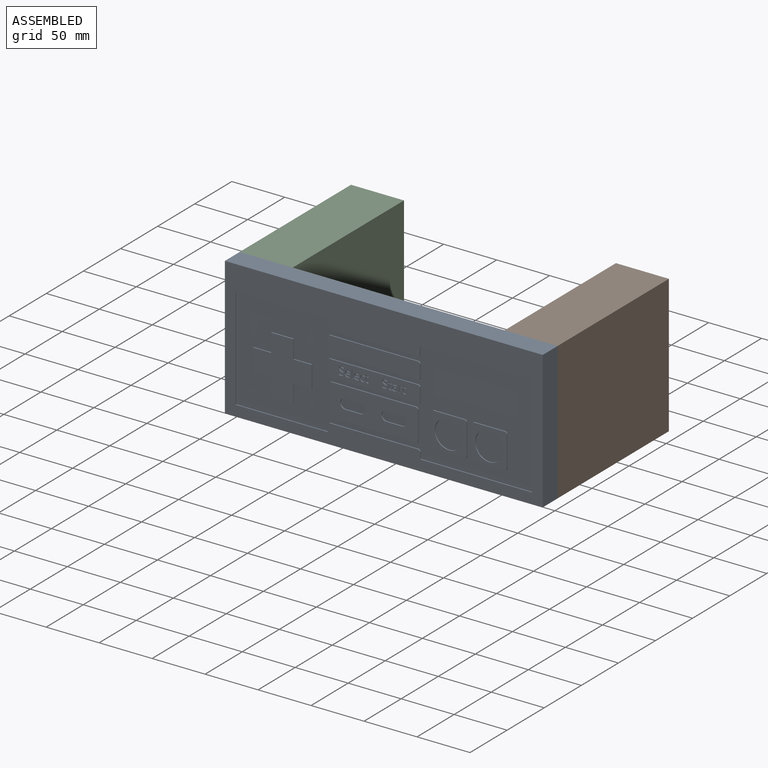
[diagram: assembled view]
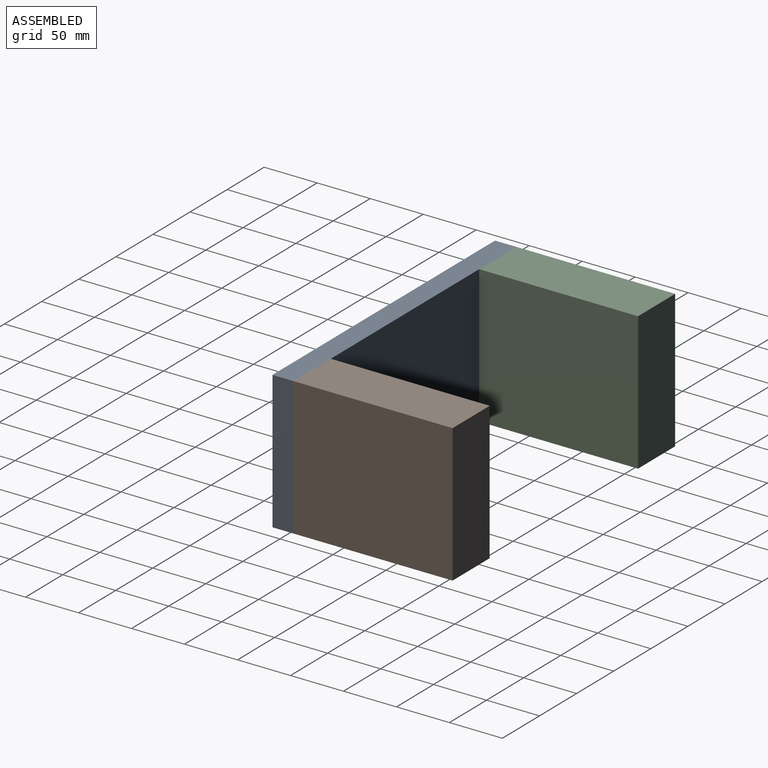
[diagram: assembled view, second angle]
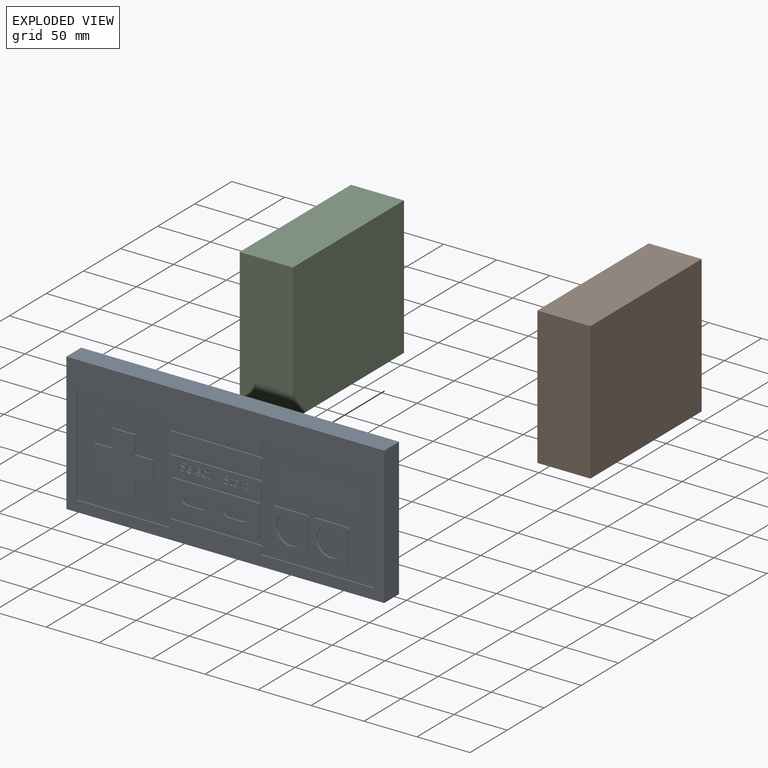
[diagram: exploded view]
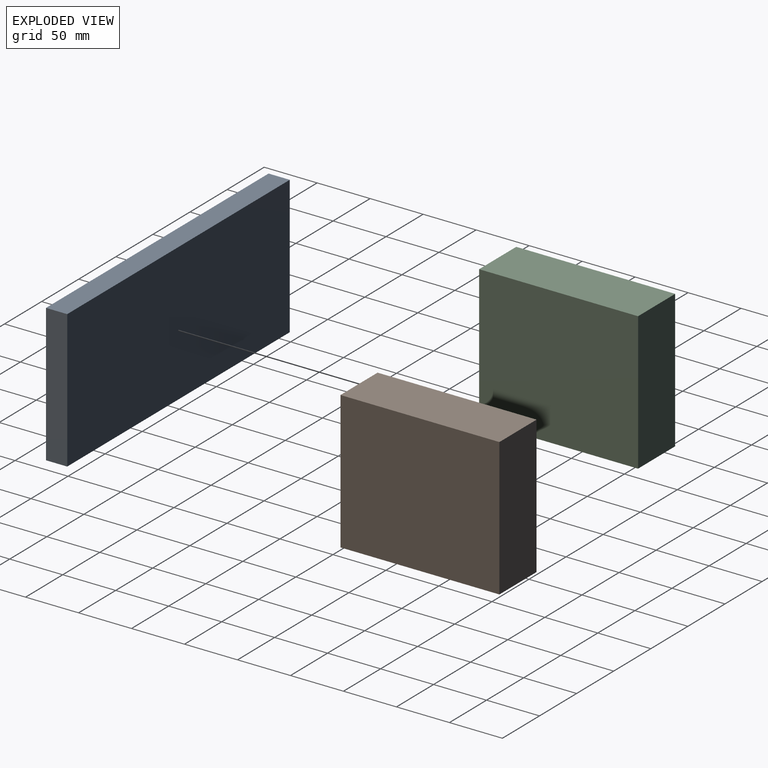
[diagram: exploded view, second angle]
ASSEMBLY  parts=3 mates=2
PART A: 315 faces, bbox 300x20x130 mm
  f0: plane 87x16mm, normal (0,-1,0), area 1268mm2, adj f21,f22,f23,f24,f25,f26,f27,f69
  f1: plane 300x130mm, normal (0,-1,0), area 13595.6mm2, adj f2,f3,f4,f5,f42,f43,f44,f45
  f2: plane 300x20mm, normal (0,0,1), area 6000mm2, adj f1,f3,f5,f6
  f3: plane 130x20mm, normal (-1,0,0), area 2600mm2, adj f1,f2,f4,f6
  f4: plane 300x20mm, normal (0,0,-1), area 6000mm2, adj f1,f3,f5,f6
  f5: plane 130x20mm, normal (1,0,0), area 2600mm2, adj f1,f2,f4,f6
  f6: plane 300x130mm, normal (0,1,0), area 39000mm2, adj f2,f3,f4,f5
  f7: plane 79.5x1mm, normal (0,0,1), area 79.5mm2, adj f8,f74,f75,f84
  f8: cylinder r=2mm len=2mm, axis (0,-1,0), area 3.1mm2, adj f7,f9,f75,f84
  f9: plane 26.5x1mm, normal (1,0,0), area 26.5mm2, adj f8,f10,f75,f84
  f10: cylinder r=2mm len=2mm, axis (0,-1,0), area 3.1mm2, adj f9,f11,f75,f84
  f11: plane 79.5x1mm, normal (0,0,-1), area 79.5mm2, adj f10,f12,f75,f84
  f12: cylinder r=2mm len=2mm, axis (0,-1,0), area 3.1mm2, adj f11,f13,f75,f84
  f13: plane 26.5x1mm, normal (-1,0,0), area 26.5mm2, adj f12,f74,f75,f84
  f14: cylinder r=2mm len=2mm, axis (0,-1,0), area 3.1mm2, adj f15,f68,f75,f79
  f15: plane 83x1mm, normal (0,0,1), area 83mm2, adj f14,f16,f75,f79
  f16: cylinder r=2mm len=2mm, axis (0,-1,0), area 3.1mm2, adj f15,f17,f75,f79
  f17: plane 12x1mm, normal (1,0,0), area 12mm2, adj f16,f18,f75,f79
  f18: cylinder r=2mm len=2mm, axis (0,-1,0), area 3.1mm2, adj f17,f19,f75,f79
  f19: plane 83x1mm, normal (0,0,-1), area 83mm2, adj f18,f20,f75,f79
  f20: cylinder r=2mm len=2mm, axis (0,-1,0), area 3.1mm2, adj f19,f68,f75,f79
  f21: cylinder r=2mm len=2mm, axis (0,-1,0), area 3.1mm2, adj f0,f22,f69,f75
  f22: plane 12x1mm, normal (-1,0,0), area 12mm2, adj f0,f21,f23,f75
  f23: cylinder r=2mm len=2mm, axis (0,-1,0), area 3.1mm2, adj f0,f22,f24,f75
  f24: plane 83x1mm, normal (0,0,1), area 83mm2, adj f0,f23,f25,f75
  f25: cylinder r=2mm len=2mm, axis (0,-1,0), area 3.1mm2, adj f0,f24,f26,f75
  f26: plane 12x1mm, normal (1,0,0), area 12mm2, adj f0,f25,f27,f75
  f27: cylinder r=2mm len=2mm, axis (0,-1,0), area 3.1mm2, adj f0,f26,f69,f75
  f28: plane 29x1mm, normal (0,0,-1), area 29mm2, adj f29,f70,f75,f78
  f29: cylinder r=2mm len=2mm, axis (0,-1,0), area 3.1mm2, adj f28,f30,f75,f78
  f30: plane 29x1mm, normal (-1,0,0), area 29mm2, adj f29,f31,f75,f78
  f31: cylinder r=2mm len=2mm, axis (0,-1,0), area 3.1mm2, adj f30,f32,f75,f78
  f32: plane 29x1mm, normal (0,0,1), area 29mm2, adj f31,f33,f75,f78
  f33: cylinder r=2mm len=2mm, axis (0,-1,0), area 3.1mm2, adj f32,f34,f75,f78
  f34: plane 29x1mm, normal (1,0,0), area 29mm2, adj f33,f70,f75,f78
  f35: plane 29x1mm, normal (0,0,-1), area 29mm2, adj f36,f71,f75,f77
  f36: cylinder r=2mm len=2mm, axis (0,-1,0), area 3.1mm2, adj f35,f37,f75,f77
  f37: plane 29x1mm, normal (-1,0,0), area 29mm2, adj f36,f38,f75,f77
  f38: cylinder r=2mm len=2mm, axis (0,-1,0), area 3.1mm2, adj f37,f39,f75,f77
  f39: plane 29x1mm, normal (0,0,1), area 29mm2, adj f38,f40,f75,f77
  f40: cylinder r=2mm len=2mm, axis (0,-1,0), area 3.1mm2, adj f39,f41,f75,f77
  f41: plane 29x1mm, normal (1,0,0), area 29mm2, adj f40,f71,f75,f77
  f42: plane 105.9x1mm, normal (0,0,1), area 105.9mm2, adj f1,f43,f72,f75
  f43: plane 96x1mm, normal (-1,0,0), area 96mm2, adj f1,f42,f44,f75
  f44: plane 106x1mm, normal (0,0,-1), area 106mm2, adj f1,f43,f45,f75
  f45: plane 7x1mm, normal (1,0,0), area 7mm2, adj f1,f44,f46,f75
  f46: cylinder r=2mm len=2mm, axis (0,-1,0), area 3.1mm2, adj f1,f45,f47,f75
  f47: plane 83x1mm, normal (0,0,-1), area 83mm2, adj f1,f46,f48,f75
  f48: cylinder r=2mm len=2mm, axis (0,-1,0), area 3.1mm2, adj f1,f47,f49,f75
  f49: plane 7x1mm, normal (-1,0,0), area 7mm2, adj f1,f48,f50,f75
  f50: plane 87x1mm, normal (0,0,-1), area 87mm2, adj f1,f49,f51,f75
  f51: plane 96x1mm, normal (1,0,0), area 96mm2, adj f1,f50,f52,f75
  f52: plane 87.1x1mm, normal (0,0,1), area 87.1mm2, adj f1,f51,f53,f75
  f53: plane 6x1mm, normal (-1,0,0), area 6mm2, adj f1,f52,f54,f75
  f54: cylinder r=2mm len=2mm, axis (0,-1,0), area 3.1mm2, adj f1,f53,f55,f75
  f55: plane 83x1mm, normal (0,0,1), area 83mm2, adj f1,f54,f56,f75
  f56: cylinder r=2mm len=2mm, axis (0,-1,0), area 3.1mm2, adj f1,f55,f72,f75
  f57: plane 17.25x1mm, normal (1,0,0), area 17.3mm2, adj f58,f73,f75,f76
  f58: plane 21x1mm, normal (0,0,-1), area 21mm2, adj f57,f59,f75,f76
  f59: plane 17.25x1mm, normal (-1,0,0), area 17.3mm2, adj f58,f60,f75,f76
  f60: plane 17.25x1mm, normal (0,0,-1), area 17.3mm2, adj f59,f61,f75,f76
  f61: plane 21x1mm, normal (-1,0,0), area 21mm2, adj f60,f62,f75,f76
  f62: plane 17.25x1mm, normal (0,0,1), area 17.3mm2, adj f61,f63,f75,f76
  f63: plane 17.25x1mm, normal (-1,0,0), area 17.3mm2, adj f62,f64,f75,f76
  f64: plane 21x1mm, normal (0,0,1), area 21mm2, adj f63,f65,f75,f76
  f65: plane 17.25x1mm, normal (1,0,0), area 17.3mm2, adj f64,f66,f75,f76
  f66: plane 17.25x1mm, normal (0,0,1), area 17.2mm2, adj f65,f67,f75,f76
  f67: plane 21x1mm, normal (1,0,0), area 21mm2, adj f66,f73,f75,f76
  f68: plane 12x1mm, normal (-1,0,0), area 12mm2, adj f14,f20,f75,f79
  f69: plane 83x1mm, normal (0,0,-1), area 83mm2, adj f0,f21,f27,f75
  f70: cylinder r=2mm len=2mm, axis (0,-1,0), area 3.1mm2, adj f28,f34,f75,f78
  f71: cylinder r=2mm len=2mm, axis (0,-1,0), area 3.1mm2, adj f35,f41,f75,f77
  f72: plane 6x1mm, normal (1,0,0), area 6mm2, adj f1,f42,f56,f75
  f73: plane 17.25x1mm, normal (0,0,-1), area 17.2mm2, adj f57,f67,f75,f76
  f74: cylinder r=2mm len=2mm, axis (0,-1,0), area 3.1mm2, adj f7,f13,f75,f84
  f75: plane 280x96mm, normal (0,-1,0), area 16022.9mm2, adj f7,f8,f9,f10,f11,f12,f13,f14
  f76: plane 55.5x55.5mm, normal (0,-1,0), area 1890mm2, adj f57,f58,f59,f60,f61,f62,f63,f64
  f77: plane 33x33mm, normal (0,-1,0), area 513mm2, adj f35,f36,f37,f38,f39,f40,f41,f71
  f78: plane 33x33mm, normal (0,-1,0), area 513mm2, adj f28,f29,f30,f31,f32,f33,f34,f70
  f79: plane 87x16mm, normal (0,-1,0), area 1388.6mm2, adj f14,f15,f16,f17,f18,f19,f20,f68
  f80: cylinder r=13.5mm len=27mm, axis (0,-1,0), area 84.8mm2, adj f77,f81
  f81: plane 27x27mm, normal (0,-1,0), area 572.6mm2, adj f80
  f82: cylinder r=13.5mm len=27mm, axis (0,-1,0), area 84.8mm2, adj f78,f83
  f83: plane 27x27mm, normal (0,-1,0), area 572.6mm2, adj f82
  f84: plane 83.5x30.5mm, normal (0,-1,0), area 2127.2mm2, adj f7,f8,f9,f10,f11,f12,f13,f74
  f85: plane 14.57x1mm, normal (0,0,-1), area 14.6mm2, adj f84,f86,f88,f89
  f86: cylinder r=4.73mm len=9.46mm, axis (0,-1,0), area 14.9mm2, adj f84,f85,f87,f89
  f87: plane 14.57x1mm, normal (0,0,1), area 14.6mm2, adj f84,f86,f88,f89
  f88: cylinder r=4.73mm len=9.46mm, axis (0,-1,0), area 14.9mm2, adj f84,f85,f87,f89
  f89: plane 24.03x9.46mm, normal (0,-1,0), area 208.1mm2, adj f85,f86,f87,f88
  f90: cylinder r=4.73mm len=9.46mm, axis (0,-1,0), area 14.9mm2, adj f84,f91,f93,f94
  f91: plane 14.57x1mm, normal (0,0,-1), area 14.6mm2, adj f84,f90,f92,f94
  f92: cylinder r=4.73mm len=9.46mm, axis (0,-1,0), area 14.9mm2, adj f84,f91,f93,f94
  f93: plane 14.57x1mm, normal (0,0,1), area 14.6mm2, adj f84,f90,f92,f94
  f94: plane 24.03x9.46mm, normal (0,-1,0), area 208.1mm2, adj f90,f91,f92,f93
  f95: extruded ~1.07x1mm, area 1.2mm2, adj f96,f113,f114,f312
  f96: extruded ~1.02x1mm, area 1.1mm2, adj f95,f97,f114,f312
  f97: extruded ~1.22x1mm, area 1.3mm2, adj f96,f98,f114,f312
  f98: plane 2.92x1mm, normal (0,0,-1), area 2.9mm2, adj f97,f113,f114,f312
  f99: extruded ~1.95x1mm, area 2.2mm2, adj f0,f100,f112,f114
  f100: extruded ~1x0.96mm, area 1mm2, adj f0,f99,f101,f114
  f101: extruded ~1x0.85mm, area 0.9mm2, adj f0,f100,f102,f114
  f102: plane 1x0.75mm, normal (-1,0,0), area 0.8mm2, adj f0,f101,f103,f114
  f103: extruded ~1.78x1mm, area 1.8mm2, adj f0,f102,f104,f114
  f104: extruded ~1.33x1mm, area 1.5mm2, adj f0,f103,f105,f114
  f105: extruded ~1.49x1mm, area 1.6mm2, adj f0,f104,f106,f114
  f106: plane 3.84x1mm, normal (0,0,1), area 3.8mm2, adj f0,f105,f107,f114
  f107: plane 1x0.53mm, normal (-1,0,0), area 0.5mm2, adj f0,f106,f108,f114
  f108: extruded ~1.82x1mm, area 2mm2, adj f0,f107,f109,f114
  f109: extruded ~1.66x1mm, area 1.9mm2, adj f0,f108,f110,f114
  f110: extruded ~1.78x1mm, area 2mm2, adj f0,f109,f111,f114
  f111: extruded ~2.14x1mm, area 2.3mm2, adj f0,f110,f112,f114
  f112: extruded ~2.09x1mm, area 2.3mm2, adj f0,f99,f111,f114
  f113: extruded ~1.21x1mm, area 1.3mm2, adj f95,f98,f114,f312
  f114: plane 5.78x4.72mm, normal (0,-1,0), area 12.4mm2, adj f95,f96,f97,f98,f99,f100,f101,f102
  f115: extruded ~1.07x1mm, area 1.2mm2, adj f116,f133,f134,f313
  f116: extruded ~1.02x1mm, area 1.1mm2, adj f115,f117,f134,f313
  f117: extruded ~1.22x1mm, area 1.3mm2, adj f116,f118,f134,f313
  f118: plane 2.92x1mm, normal (0,0,-1), area 2.9mm2, adj f117,f133,f134,f313
  f119: extruded ~1.95x1mm, area 2.2mm2, adj f0,f120,f132,f134
  f120: extruded ~1x0.96mm, area 1mm2, adj f0,f119,f121,f134
  f121: extruded ~1x0.85mm, area 0.9mm2, adj f0,f120,f122,f134
  f122: plane 1x0.75mm, normal (-1,0,0), area 0.8mm2, adj f0,f121,f123,f134
  f123: extruded ~1.78x1mm, area 1.8mm2, adj f0,f122,f124,f134
  f124: extruded ~1.33x1mm, area 1.5mm2, adj f0,f123,f125,f134
  f125: extruded ~1.49x1mm, area 1.6mm2, adj f0,f124,f126,f134
  f126: plane 3.84x1mm, normal (0,0,1), area 3.8mm2, adj f0,f125,f127,f134
  f127: plane 1x0.53mm, normal (-1,0,0), area 0.5mm2, adj f0,f126,f128,f134
  f128: extruded ~1.82x1mm, area 2mm2, adj f0,f127,f129,f134
  f129: extruded ~1.66x1mm, area 1.9mm2, adj f0,f128,f130,f134
  f130: extruded ~1.78x1mm, area 2mm2, adj f0,f129,f131,f134
  f131: extruded ~2.14x1mm, area 2.3mm2, adj f0,f130,f132,f134
  f132: extruded ~2.09x1mm, area 2.3mm2, adj f0,f119,f131,f134
  f133: extruded ~1.21x1mm, area 1.3mm2, adj f115,f118,f134,f313
  f134: plane 5.78x4.72mm, normal (0,-1,0), area 12.4mm2, adj f115,f116,f117,f118,f119,f120,f121,f122
  f135: extruded ~1x0.43mm, area 0.4mm2, adj f0,f136,f153,f154
  f136: extruded ~1x0.66mm, area 0.7mm2, adj f0,f135,f137,f154
  f137: extruded ~1x0.77mm, area 0.8mm2, adj f0,f136,f138,f154
  f138: plane 3.28x1mm, normal (-1,0,0), area 3.3mm2, adj f0,f137,f139,f154
  f139: plane 1.62x1mm, normal (0,0,1), area 1.6mm2, adj f0,f138,f140,f154
  f140: plane 1x0.66mm, normal (-1,0,0), area 0.7mm2, adj f0,f139,f141,f154
  f141: plane 1.62x1mm, normal (0,0,-1), area 1.6mm2, adj f0,f140,f142,f154
  f142: plane 1.29x1mm, normal (-1,0,0), area 1.3mm2, adj f0,f141,f143,f154
  f143: plane 1x0.49mm, normal (0,0,-1), area 0.5mm2, adj f0,f142,f144,f154
  f144: plane 1.19x1mm, normal (0.96,0,-0.29), area 1.2mm2, adj f0,f143,f145,f154
  f145: plane 1x0.8mm, normal (0.4,0,-0.92), area 0.9mm2, adj f0,f144,f146,f154
  f146: plane 1x0.41mm, normal (1,0,0), area 0.4mm2, adj f0,f145,f147,f154
  f147: plane 1x0.8mm, normal (0,0,1), area 0.8mm2, adj f0,f146,f148,f154
  f148: plane 3.32x1mm, normal (1,0,0), area 3.3mm2, adj f0,f147,f149,f154
  f149: extruded ~1.7x1.62mm, area 2.7mm2, adj f0,f148,f150,f154
  f150: extruded ~1x0.48mm, area 0.5mm2, adj f0,f149,f151,f154
  f151: extruded ~1x0.4mm, area 0.4mm2, adj f0,f150,f152,f154
  f152: plane 1x0.65mm, normal (-1,0,0), area 0.6mm2, adj f0,f151,f153,f154
  f153: extruded ~1x0.33mm, area 0.3mm2, adj f0,f135,f152,f154
  f154: plane 6.97x3.3mm, normal (0,-1,0), area 8mm2, adj f135,f136,f137,f138,f139,f140,f141,f142
  f155: extruded ~1x0.67mm, area 0.7mm2, adj f0,f156,f167,f168
  f156: extruded ~1x0.96mm, area 1mm2, adj f0,f155,f157,f168
  f157: extruded ~1x0.84mm, area 1.1mm2, adj f0,f156,f158,f168
  f158: plane 1x0.04mm, normal (0,0,-1), area 0mm2, adj f0,f157,f159,f168
  f159: plane 1.03x1mm, normal (-1,0,-0.09), area 1mm2, adj f0,f158,f160,f168
  f160: plane 1x0.7mm, normal (0,0,-1), area 0.7mm2, adj f0,f159,f161,f168
  f161: plane 5.57x1mm, normal (1,0,0), area 5.6mm2, adj f0,f160,f162,f168
  f162: plane 1x0.84mm, normal (0,0,1), area 0.8mm2, adj f0,f161,f163,f168
  f163: plane 2.99x1mm, normal (-1,0,0), area 3mm2, adj f0,f162,f164,f168
  f164: extruded ~1.37x1mm, area 1.5mm2, adj f0,f163,f165,f168
  f165: extruded ~1.16x1mm, area 1.3mm2, adj f0,f164,f166,f168
  f166: extruded ~1x0.61mm, area 0.6mm2, adj f0,f165,f167,f168
  f167: plane 1x0.78mm, normal (-0.99,0,0.15), area 0.8mm2, adj f0,f155,f166,f168
  f168: plane 5.68x3.21mm, normal (0,-1,0), area 6.5mm2, adj f155,f156,f157,f158,f159,f160,f161,f162
  f169: extruded ~1x0.43mm, area 0.4mm2, adj f0,f170,f187,f188
  f170: extruded ~1x0.66mm, area 0.7mm2, adj f0,f169,f171,f188
  f171: extruded ~1x0.77mm, area 0.8mm2, adj f0,f170,f172,f188
  f172: plane 3.28x1mm, normal (-1,0,0), area 3.3mm2, adj f0,f171,f173,f188
  f173: plane 1.62x1mm, normal (0,0,1), area 1.6mm2, adj f0,f172,f174,f188
  f174: plane 1x0.66mm, normal (-1,0,0), area 0.7mm2, adj f0,f173,f175,f188
  f175: plane 1.62x1mm, normal (0,0,-1), area 1.6mm2, adj f0,f174,f176,f188
  f176: plane 1.29x1mm, normal (-1,0,0), area 1.3mm2, adj f0,f175,f177,f188
  f177: plane 1x0.49mm, normal (0,0,-1), area 0.5mm2, adj f0,f176,f178,f188
  f178: plane 1.19x1mm, normal (0.96,0,-0.29), area 1.2mm2, adj f0,f177,f179,f188
  f179: plane 1x0.8mm, normal (0.4,0,-0.92), area 0.9mm2, adj f0,f178,f180,f188
  f180: plane 1x0.41mm, normal (1,0,0), area 0.4mm2, adj f0,f179,f181,f188
  f181: plane 1x0.8mm, normal (0,0,1), area 0.8mm2, adj f0,f180,f182,f188
  f182: plane 3.32x1mm, normal (1,0,0), area 3.3mm2, adj f0,f181,f183,f188
  f183: extruded ~1.7x1.62mm, area 2.7mm2, adj f0,f182,f184,f188
  f184: extruded ~1x0.48mm, area 0.5mm2, adj f0,f183,f185,f188
  f185: extruded ~1x0.4mm, area 0.4mm2, adj f0,f184,f186,f188
  f186: plane 1x0.65mm, normal (-1,0,0), area 0.6mm2, adj f0,f185,f187,f188
  f187: extruded ~1x0.33mm, area 0.3mm2, adj f0,f169,f186,f188
  f188: plane 6.97x3.3mm, normal (0,-1,0), area 8mm2, adj f169,f170,f171,f172,f173,f174,f175,f176
  f189: extruded ~1x0.43mm, area 0.4mm2, adj f0,f190,f207,f208
  f190: extruded ~1x0.66mm, area 0.7mm2, adj f0,f189,f191,f208
  f191: extruded ~1x0.77mm, area 0.8mm2, adj f0,f190,f192,f208
  f192: plane 3.28x1mm, normal (-1,0,0), area 3.3mm2, adj f0,f191,f193,f208
  f193: plane 1.62x1mm, normal (0,0,1), area 1.6mm2, adj f0,f192,f194,f208
  f194: plane 1x0.66mm, normal (-1,0,0), area 0.7mm2, adj f0,f193,f195,f208
  f195: plane 1.62x1mm, normal (0,0,-1), area 1.6mm2, adj f0,f194,f196,f208
  f196: plane 1.29x1mm, normal (-1,0,0), area 1.3mm2, adj f0,f195,f197,f208
  f197: plane 1x0.49mm, normal (0,0,-1), area 0.5mm2, adj f0,f196,f198,f208
  f198: plane 1.19x1mm, normal (0.96,0,-0.29), area 1.2mm2, adj f0,f197,f199,f208
  f199: plane 1x0.8mm, normal (0.4,0,-0.92), area 0.9mm2, adj f0,f198,f200,f208
  f200: plane 1x0.41mm, normal (1,0,0), area 0.4mm2, adj f0,f199,f201,f208
  f201: plane 1x0.8mm, normal (0,0,1), area 0.8mm2, adj f0,f200,f202,f208
  f202: plane 3.32x1mm, normal (1,0,0), area 3.3mm2, adj f0,f201,f203,f208
  f203: extruded ~1.7x1.62mm, area 2.7mm2, adj f0,f202,f204,f208
  f204: extruded ~1x0.48mm, area 0.5mm2, adj f0,f203,f205,f208
  f205: extruded ~1x0.4mm, area 0.4mm2, adj f0,f204,f206,f208
  f206: plane 1x0.65mm, normal (-1,0,0), area 0.6mm2, adj f0,f205,f207,f208
  f207: extruded ~1x0.33mm, area 0.3mm2, adj f0,f189,f206,f208
  f208: plane 6.97x3.3mm, normal (0,-1,0), area 8mm2, adj f189,f190,f191,f192,f193,f194,f195,f196
  f209: extruded ~1.88x1mm, area 2.1mm2, adj f0,f210,f223,f224
  f210: extruded ~1.41x1mm, area 1.5mm2, adj f0,f209,f211,f224
  f211: plane 1x0.75mm, normal (-1,0,0), area 0.7mm2, adj f0,f210,f212,f224
  f212: extruded ~1.43x1mm, area 1.5mm2, adj f0,f211,f213,f224
  f213: extruded ~1.23x1mm, area 1.4mm2, adj f0,f212,f214,f224
  f214: extruded ~1.58x1mm, area 1.7mm2, adj f0,f213,f215,f224
  f215: extruded ~2.17x1.7mm, area 3.1mm2, adj f0,f214,f216,f224
  f216: extruded ~1x0.58mm, area 0.6mm2, adj f0,f215,f217,f224
  f217: extruded ~1x0.61mm, area 0.6mm2, adj f0,f216,f218,f224
  f218: plane 1x0.72mm, normal (-0.94,0,0.34), area 0.8mm2, adj f0,f217,f219,f224
  f219: extruded ~1x0.63mm, area 0.7mm2, adj f0,f218,f220,f224
  f220: extruded ~1x0.8mm, area 0.8mm2, adj f0,f219,f221,f224
  f221: extruded ~1.92x1mm, area 2.1mm2, adj f0,f220,f222,f224
  f222: extruded ~2.16x1mm, area 2.3mm2, adj f0,f221,f223,f224
  f223: extruded ~2.11x1mm, area 2.3mm2, adj f0,f209,f222,f224
  f224: plane 5.78x4.03mm, normal (0,-1,0), area 8.2mm2, adj f209,f210,f211,f212,f213,f214,f215,f216
  f225: plane 1x0.84mm, normal (0,0,1), area 0.8mm2, adj f0,f226,f228,f229
  f226: plane 7.92x1mm, normal (-1,0,0), area 7.9mm2, adj f0,f225,f227,f229
  f227: plane 1x0.84mm, normal (0,0,-1), area 0.8mm2, adj f0,f226,f228,f229
  f228: plane 7.92x1mm, normal (1,0,0), area 7.9mm2, adj f0,f225,f227,f229
  f229: plane 7.92x0.84mm, normal (0,-1,0), area 6.7mm2, adj f225,f226,f227,f228
  f230: extruded ~2.03x1mm, area 2.1mm2, adj f0,f231,f256,f257
  f231: extruded ~1.93x1mm, area 2mm2, adj f0,f230,f232,f257
  f232: extruded ~1.53x1mm, area 1.8mm2, adj f0,f231,f233,f257
  f233: extruded ~1.24x1mm, area 1.3mm2, adj f0,f232,f234,f257
  f234: extruded ~1.61x1mm, area 1.9mm2, adj f0,f233,f235,f257
  f235: extruded ~1.04x1mm, area 1.1mm2, adj f0,f234,f236,f257
  f236: extruded ~1x0.48mm, area 0.7mm2, adj f0,f235,f237,f257
  f237: extruded ~1x0.63mm, area 0.7mm2, adj f0,f236,f238,f257
  f238: extruded ~1x0.82mm, area 0.9mm2, adj f0,f237,f239,f257
  f239: extruded ~1.07x1mm, area 1.1mm2, adj f0,f238,f240,f257
  f240: extruded ~1.79x1mm, area 1.8mm2, adj f0,f239,f241,f257
  f241: plane 1x0.75mm, normal (-0.94,0,0.34), area 0.8mm2, adj f0,f240,f242,f257
  f242: extruded ~1.34x1mm, area 1.4mm2, adj f0,f241,f243,f257
  f243: extruded ~1x0.7mm, area 0.7mm2, adj f0,f242,f244,f257
  f244: extruded ~1x0.58mm, area 0.6mm2, adj f0,f243,f245,f257
  f245: extruded ~1.13x1mm, area 1.2mm2, adj f0,f244,f246,f257
  f246: extruded ~1.37x1mm, area 1.6mm2, adj f0,f245,f247,f257
  f247: extruded ~1.33x1mm, area 1.4mm2, adj f0,f246,f248,f257
  f248: extruded ~1.48x1mm, area 1.7mm2, adj f0,f247,f249,f257
  f249: extruded ~1.11x1mm, area 1.2mm2, adj f0,f248,f250,f257
  f250: extruded ~1x0.52mm, area 0.7mm2, adj f0,f249,f251,f257
  f251: extruded ~1x0.63mm, area 0.7mm2, adj f0,f250,f252,f257
  f252: extruded ~1x0.91mm, area 1.1mm2, adj f0,f251,f253,f257
  f253: extruded ~1.3x1mm, area 1.4mm2, adj f0,f252,f254,f257
  f254: extruded ~1.07x1mm, area 1.1mm2, adj f0,f253,f255,f257
  f255: extruded ~1x1mm, area 1mm2, adj f0,f254,f256,f257
  f256: plane 1x0.83mm, normal (1,0,0), area 0.8mm2, adj f0,f230,f255,f257
  f257: plane 7.65x4.68mm, normal (0,-1,0), area 12.8mm2, adj f230,f231,f232,f233,f234,f235,f236,f237
  f258: extruded ~1.24x1mm, area 1.3mm2, adj f259,f284,f285,f314
  f259: extruded ~1x0.77mm, area 0.8mm2, adj f258,f260,f285,f314
  f260: extruded ~1x0.7mm, area 0.8mm2, adj f259,f261,f285,f314
  f261: extruded ~1x0.86mm, area 1mm2, adj f260,f262,f285,f314
  f262: extruded ~1.45x1mm, area 1.5mm2, adj f261,f263,f285,f314
  f263: plane 1x0.84mm, normal (-0.04,0,1), area 0.8mm2, adj f262,f264,f285,f314
  f264: plane 1x0.5mm, normal (1,0,0), area 0.5mm2, adj f263,f284,f285,f314
  f265: plane 1x0.79mm, normal (0.98,0,0.21), area 0.8mm2, adj f0,f266,f283,f285
  f266: plane 1x0.63mm, normal (0,0,1), area 0.6mm2, adj f0,f265,f267,f285
  f267: plane 3.81x1mm, normal (-1,0,0), area 3.8mm2, adj f0,f266,f268,f285
  f268: extruded ~1.42x1mm, area 1.5mm2, adj f0,f267,f269,f285
  f269: extruded ~1.48x1mm, area 1.6mm2, adj f0,f268,f270,f285
  f270: extruded ~1x0.99mm, area 1mm2, adj f0,f269,f271,f285
  f271: extruded ~1x0.9mm, area 1mm2, adj f0,f270,f272,f285
  f272: plane 1x0.65mm, normal (0.93,0,0.37), area 0.7mm2, adj f0,f271,f273,f285
  f273: extruded ~1.58x1mm, area 1.6mm2, adj f0,f272,f274,f285
  f274: extruded ~1x0.9mm, area 1mm2, adj f0,f273,f275,f285
  f275: extruded ~1x0.97mm, area 1mm2, adj f0,f274,f276,f285
  f276: plane 1x0.35mm, normal (1,0,0), area 0.3mm2, adj f0,f275,f277,f285
  f277: plane 1x0.95mm, normal (0.03,0,-1), area 0.9mm2, adj f0,f276,f278,f285
  f278: extruded ~2.7x1.77mm, area 3.6mm2, adj f0,f277,f279,f285
  f279: extruded ~1.22x1mm, area 1.3mm2, adj f0,f278,f280,f285
  f280: extruded ~1.3x1mm, area 1.4mm2, adj f0,f279,f281,f285
  f281: extruded ~1.04x1mm, area 1.1mm2, adj f0,f280,f282,f285
  f282: extruded ~1x0.83mm, area 1.1mm2, adj f0,f281,f283,f285
  f283: plane 1x0.04mm, normal (0,0,1), area 0mm2, adj f0,f265,f282,f285
  f284: extruded ~1.21x1mm, area 1.3mm2, adj f258,f264,f285,f314
  f285: plane 5.77x4.47mm, normal (0,-1,0), area 12.2mm2, adj f258,f259,f260,f261,f262,f263,f264,f265
  f286: extruded ~1.53x1mm, area 1.8mm2, adj f0,f287,f310,f311
  f287: extruded ~1.24x1mm, area 1.3mm2, adj f0,f286,f288,f311
  f288: extruded ~1.61x1mm, area 1.9mm2, adj f0,f287,f289,f311
  f289: extruded ~1.04x1mm, area 1.1mm2, adj f0,f288,f290,f311
  f290: extruded ~1x0.48mm, area 0.7mm2, adj f0,f289,f291,f311
  f291: extruded ~1x0.63mm, area 0.7mm2, adj f0,f290,f292,f311
  f292: extruded ~1x0.82mm, area 0.9mm2, adj f0,f291,f293,f311
  f293: extruded ~1.07x1mm, area 1.1mm2, adj f0,f292,f294,f311
  f294: extruded ~1.79x1mm, area 1.8mm2, adj f0,f293,f295,f311
  f295: plane 1x0.75mm, normal (-0.94,0,0.34), area 0.8mm2, adj f0,f294,f296,f311
  f296: extruded ~2.04x1mm, area 2.1mm2, adj f0,f295,f297,f311
  f297: extruded ~1.71x1mm, area 1.8mm2, adj f0,f296,f298,f311
  f298: extruded ~1.37x1mm, area 1.6mm2, adj f0,f297,f299,f311
  f299: extruded ~1.33x1mm, area 1.4mm2, adj f0,f298,f300,f311
  f300: extruded ~1.48x1mm, area 1.7mm2, adj f0,f299,f301,f311
  f301: extruded ~1.11x1mm, area 1.2mm2, adj f0,f300,f302,f311
  f302: extruded ~1x0.52mm, area 0.7mm2, adj f0,f301,f303,f311
  f303: extruded ~1x0.63mm, area 0.7mm2, adj f0,f302,f304,f311
  f304: extruded ~1x0.91mm, area 1.1mm2, adj f0,f303,f305,f311
  f305: extruded ~1.3x1mm, area 1.4mm2, adj f0,f304,f306,f311
  f306: extruded ~1.07x1mm, area 1.1mm2, adj f0,f305,f307,f311
  f307: extruded ~1x1mm, area 1mm2, adj f0,f306,f308,f311
  f308: plane 1x0.83mm, normal (1,0,0), area 0.8mm2, adj f0,f307,f309,f311
  f309: extruded ~2.03x1mm, area 2.1mm2, adj f0,f308,f310,f311
  f310: extruded ~1.93x1mm, area 2mm2, adj f0,f286,f309,f311
  f311: plane 7.65x4.68mm, normal (0,-1,0), area 12.8mm2, adj f286,f287,f288,f289,f290,f291,f292,f293
  f312: plane 2.92x1.65mm, normal (0,-1,0), area 3.9mm2, adj f95,f96,f97,f98,f113
  f313: plane 2.92x1.65mm, normal (0,-1,0), area 3.9mm2, adj f115,f116,f117,f118,f133
  f314: plane 2.74x2.15mm, normal (0,-1,0), area 4.7mm2, adj f258,f259,f260,f261,f262,f263,f264,f284
PART B: 6 faces, bbox 50x150x130 mm
  f0: plane 150x130mm, normal (1,0,0), area 19500mm2, adj f1,f3,f4,f5
  f1: plane 150x50mm, normal (0,0,1), area 7500mm2, adj f0,f2,f4,f5
  f2: plane 150x130mm, normal (-1,0,0), area 19500mm2, adj f1,f3,f4,f5
  f3: plane 150x50mm, normal (0,0,-1), area 7500mm2, adj f0,f2,f4,f5
  f4: plane 130x50mm, normal (0,-1,0), area 6500mm2, adj f0,f1,f2,f3
  f5: plane 130x50mm, normal (0,1,0), area 6500mm2, adj f0,f1,f2,f3
PART C: 6 faces, bbox 50x150x130 mm
  f0: plane 150x50mm, normal (0,0,1), area 7500mm2, adj f1,f3,f4,f5
  f1: plane 150x130mm, normal (-1,0,0), area 19500mm2, adj f0,f2,f4,f5
  f2: plane 150x50mm, normal (0,0,-1), area 7500mm2, adj f1,f3,f4,f5
  f3: plane 150x130mm, normal (1,0,0), area 19500mm2, adj f0,f2,f4,f5
  f4: plane 130x50mm, normal (0,-1,0), area 6500mm2, adj f0,f1,f2,f3
  f5: plane 130x50mm, normal (0,1,0), area 6500mm2, adj f0,f1,f2,f3
PLACE A t=(122.43,-90.09,-6.07)mm
PLACE B rot(axis=(0,0,1),180deg) t=(69.41,-90.09,-25.49)mm
PLACE C t=(-60.85,59.91,-27.76)mm
MATE fastened B.f5 <-> A.f6  axis (0,-1,0) through (145.66,-90.09,77.04)mm
MATE fastened C.f4 <-> A.f6  axis (0,-1,0) through (-154.34,-90.09,77.04)mm
